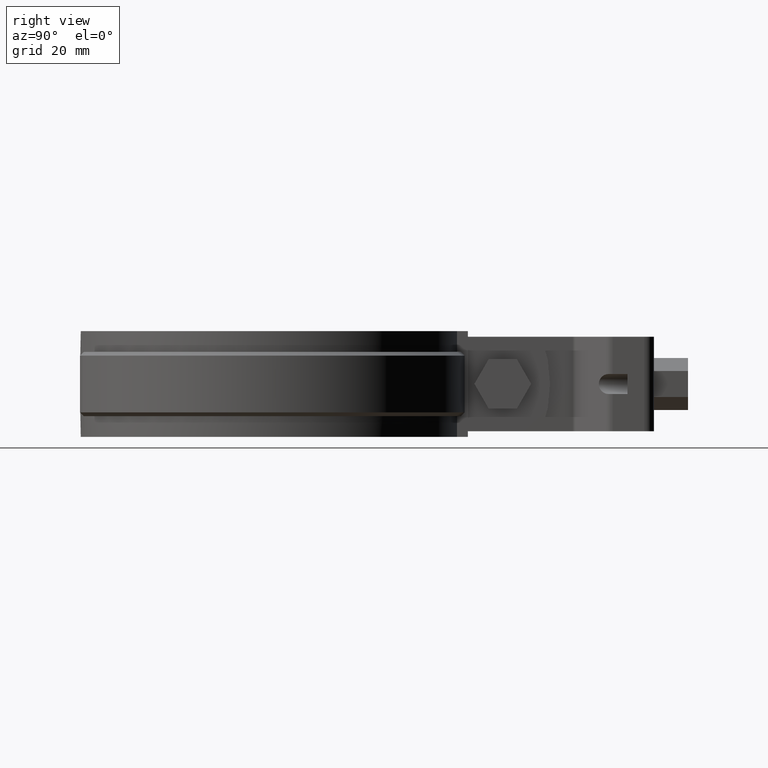
[diagram: clean part render]
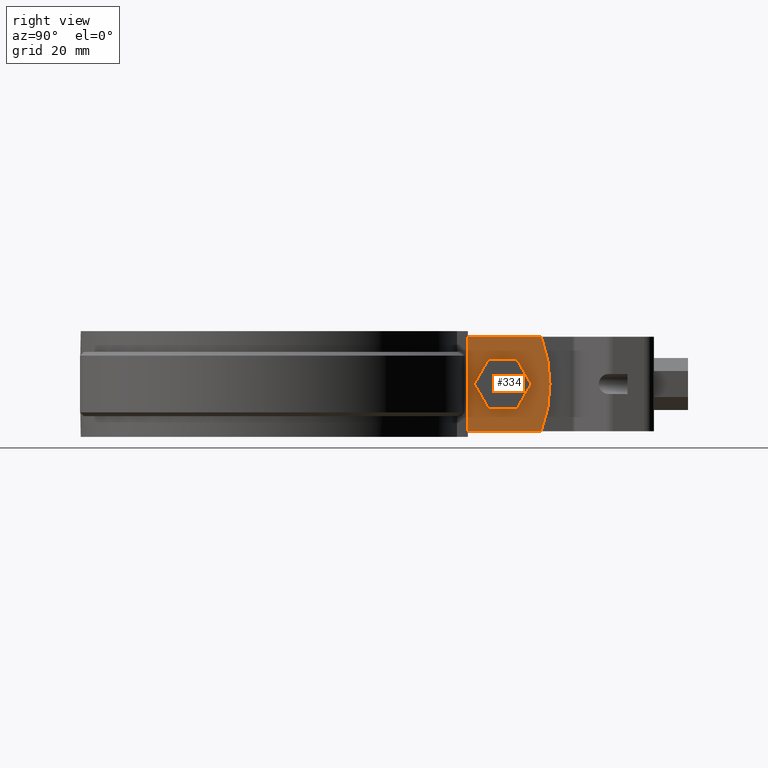
[diagram: same view with one face highlighted and labeled with its STEP entity id]
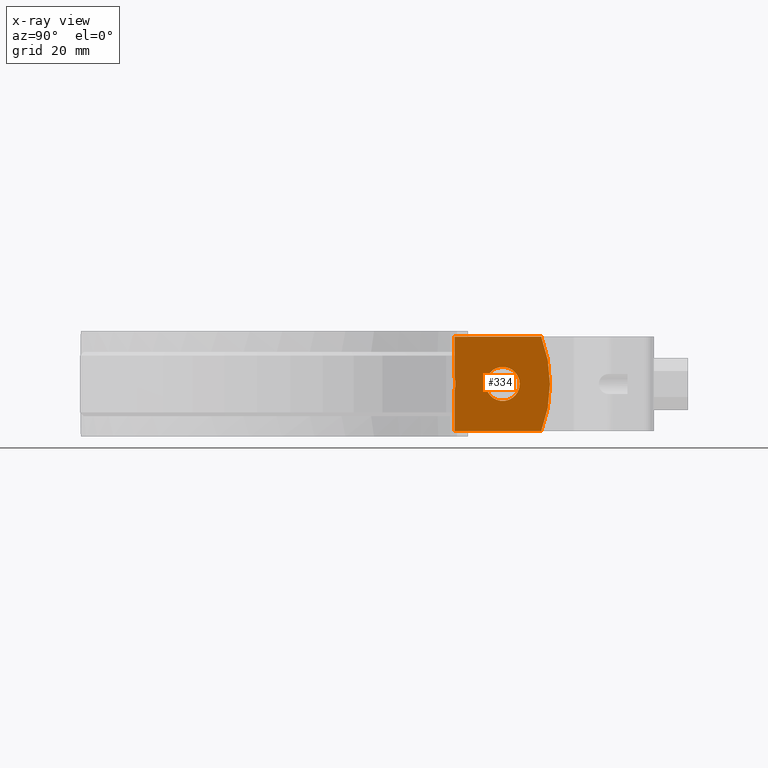
[diagram: x-ray of the same camera — body ghosted, the highlighted face saturated]
A machine part, right view. The second image highlights one B-rep face of the part: STEP entity #334.
The next image is the same camera in x-ray: the body ghosted, the highlighted face saturated — about 0% of this face is hidden behind the body in this view.
In plain terms, the highlighted planar face has unit normal (1, 0, 0).
Its self-contained STEP definition (entity closure, byte-faithful):
#334 = ADVANCED_FACE( '', ( #568, #569 ), #570, .T. );
#568 = FACE_OUTER_BOUND( '', #1159, .T. );
#569 = FACE_BOUND( '', #1160, .T. );
#570 = PLANE( '', #1161 );
#1159 = EDGE_LOOP( '', ( #2294, #2295, #2296, #2297, #2298, #2299 ) );
#1160 = EDGE_LOOP( '', ( #2300 ) );
#1161 = AXIS2_PLACEMENT_3D( '', #2301, #2302, #2303 );
#2294 = ORIENTED_EDGE( '', *, *, #4424, .F. );
#2295 = ORIENTED_EDGE( '', *, *, #4425, .F. );
#2296 = ORIENTED_EDGE( '', *, *, #4426, .T. );
#2297 = ORIENTED_EDGE( '', *, *, #4427, .T. );
#2298 = ORIENTED_EDGE( '', *, *, #4428, .F. );
#2299 = ORIENTED_EDGE( '', *, *, #4409, .F. );
#2300 = ORIENTED_EDGE( '', *, *, #4429, .T. );
#2301 = CARTESIAN_POINT( '', ( 5.00000000000000, 49.0530580086502, -12.5000000000000 ) );
#2302 = DIRECTION( '', ( 1.00000000000000, 6.16283340149655E-017, 0.000000000000000 ) );
#2303 = DIRECTION( '', ( 6.16283340149655E-017, -1.00000000000000, 0.000000000000000 ) );
#4409 = EDGE_CURVE( '', #5057, #5059, #5060, .T. );
#4424 = EDGE_CURVE( '', #5074, #5057, #5076, .T. );
#4425 = EDGE_CURVE( '', #5077, #5074, #5078, .T. );
#4426 = EDGE_CURVE( '', #5077, #5079, #5080, .T. );
#4427 = EDGE_CURVE( '', #5079, #5081, #5082, .T. );
#4428 = EDGE_CURVE( '', #5059, #5081, #5083, .T. );
#4429 = EDGE_CURVE( '', #5084, #5084, #5085, .F. );
#5057 = VERTEX_POINT( '', #6867 );
#5059 = VERTEX_POINT( '', #6884 );
#5060 = LINE( '', #6885, #6886 );
#5074 = VERTEX_POINT( '', #6975 );
#5076 = B_SPLINE_CURVE_WITH_KNOTS( '', 3, ( #6992, #6993, #6994, #6995, #6996, #6997, #6998, #6999 ), .UNSPECIFIED., .F., .F., ( 4, 2, 2, 4 ), ( 6.50521303491303E-019, 0.00168369248448245, 0.00252553872672367, 0.00336738496896489 ), .UNSPECIFIED. );
#5077 = VERTEX_POINT( '', #7000 );
#5078 = LINE( '', #7001, #7002 );
#5079 = VERTEX_POINT( '', #7003 );
#5080 = LINE( '', #7004, #7005 );
#5081 = VERTEX_POINT( '', #7006 );
#5082 = CIRCLE( '', #7007, 35.0000000000000 );
#5083 = LINE( '', #7008, #7009 );
#5084 = VERTEX_POINT( '', #7010 );
#5085 = CIRCLE( '', #7011, 4.50000000000000 );
#6867 = CARTESIAN_POINT( '', ( 5.00000000000000, 49.0530580086502, 1.67210469196951 ) );
#6884 = CARTESIAN_POINT( '', ( 5.00000000000000, 49.0530580086502, 12.5000000000000 ) );
#6885 = CARTESIAN_POINT( '', ( 5.00000000000000, 49.0530580086502, -12.5000000000000 ) );
#6886 = VECTOR( '', #9044, 1000.00000000000 );
#6975 = CARTESIAN_POINT( '', ( 5.00000000000000, 49.0530580086502, -1.67210469196750 ) );
#6992 = CARTESIAN_POINT( '', ( 5.00000000000001, 49.0530580086502, -1.67210469196750 ) );
#6993 = CARTESIAN_POINT( '', ( 5.00000000000001, 49.2132706009072, -1.12597755052289 ) );
#6994 = CARTESIAN_POINT( '', ( 5.00000000000000, 49.2954065745053, -0.570560776815829 ) );
#6995 = CARTESIAN_POINT( '', ( 5.00000000000001, 49.2962121759444, 0.277127459909967 ) );
#6996 = CARTESIAN_POINT( '', ( 5.00000000000001, 49.2752645961910, 0.562483787800153 ) );
#6997 = CARTESIAN_POINT( '', ( 5.00000000000001, 49.1937060211499, 1.12236178021089 ) );
#6998 = CARTESIAN_POINT( '', ( 4.99999999999990, 49.1332006194174, 1.39891733316318 ) );
#6999 = CARTESIAN_POINT( '', ( 4.99999999999990, 49.0530580086502, 1.67210469196941 ) );
#7000 = CARTESIAN_POINT( '', ( 5.00000000000000, 49.0530580086502, -12.5000000000000 ) );
#7001 = CARTESIAN_POINT( '', ( 5.00000000000000, 49.0530580086502, -12.5000000000000 ) );
#7002 = VECTOR( '', #9057, 1000.00000000000 );
#7003 = CARTESIAN_POINT( '', ( 5.00000000000000, 71.9781301813786, -12.5000000000000 ) );
#7004 = CARTESIAN_POINT( '', ( 5.00000000000000, 49.0530580086502, -12.5000000000000 ) );
#7005 = VECTOR( '', #9058, 1000.00000000000 );
#7006 = CARTESIAN_POINT( '', ( 5.00000000000006, 71.9781301813786, 12.5000000000000 ) );
#7007 = AXIS2_PLACEMENT_3D( '', #9059, #9060, #9061 );
#7008 = CARTESIAN_POINT( '', ( 5.00000000000000, 49.0530580086502, 12.5000000000000 ) );
#7009 = VECTOR( '', #9062, 1000.00000000000 );
#7010 = CARTESIAN_POINT( '', ( 5.00000000000000, 66.2863881048236, -1.73472347597681E-015 ) );
#7011 = AXIS2_PLACEMENT_3D( '', #9063, #9064, #9065 );
#9044 = DIRECTION( '', ( 0.000000000000000, 0.000000000000000, 1.00000000000000 ) );
#9057 = DIRECTION( '', ( 0.000000000000000, 0.000000000000000, 1.00000000000000 ) );
#9058 = DIRECTION( '', ( -6.16283340149655E-017, 1.00000000000000, 0.000000000000000 ) );
#9059 = CARTESIAN_POINT( '', ( 5.00000000000000, 39.2863881048236, 5.55111512312578E-014 ) );
#9060 = DIRECTION( '', ( 1.00000000000000, 6.16283340149655E-017, 0.000000000000000 ) );
#9061 = DIRECTION( '', ( -6.16283340149655E-017, 1.00000000000000, 0.000000000000000 ) );
#9062 = DIRECTION( '', ( -6.16283340149655E-017, 1.00000000000000, 0.000000000000000 ) );
#9063 = CARTESIAN_POINT( '', ( 5.00000000000000, 61.7863881048236, -1.73472347597681E-015 ) );
#9064 = DIRECTION( '', ( 1.00000000000000, 6.16283340149655E-017, 0.000000000000000 ) );
#9065 = DIRECTION( '', ( -6.16283340149655E-017, 1.00000000000000, 0.000000000000000 ) );